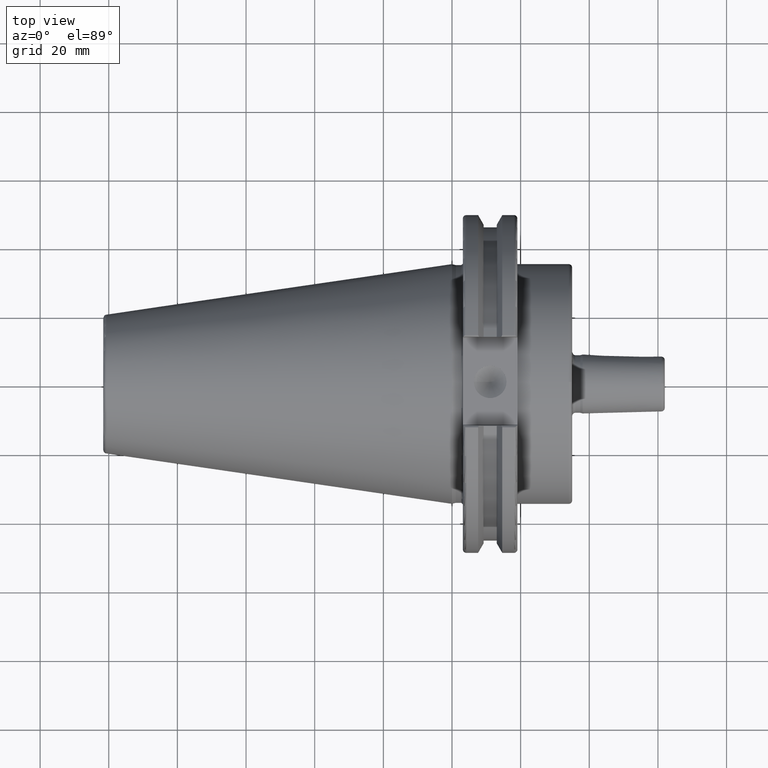
[diagram: clean part render]
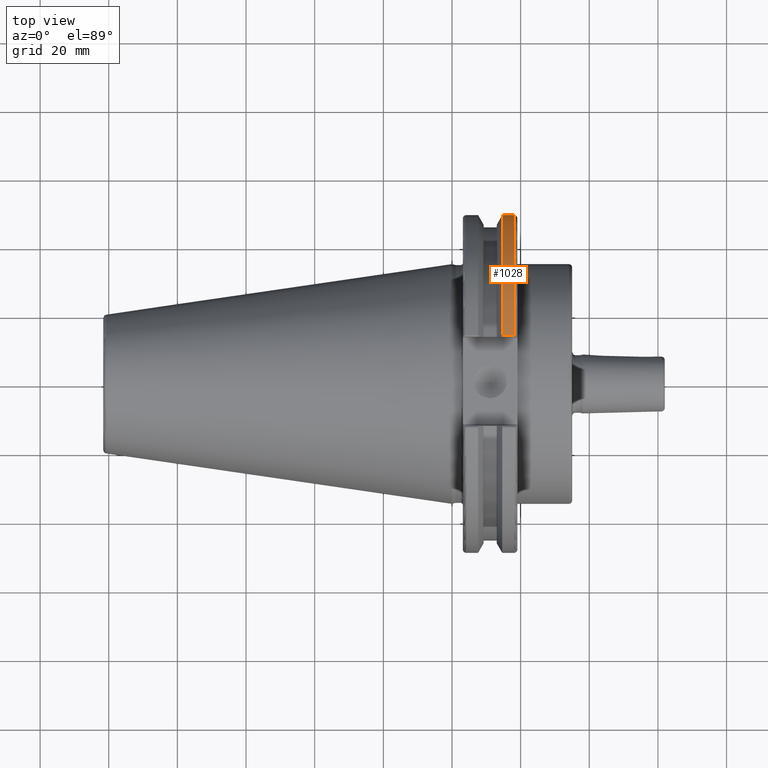
[diagram: same view with one face highlighted and labeled with its STEP entity id]
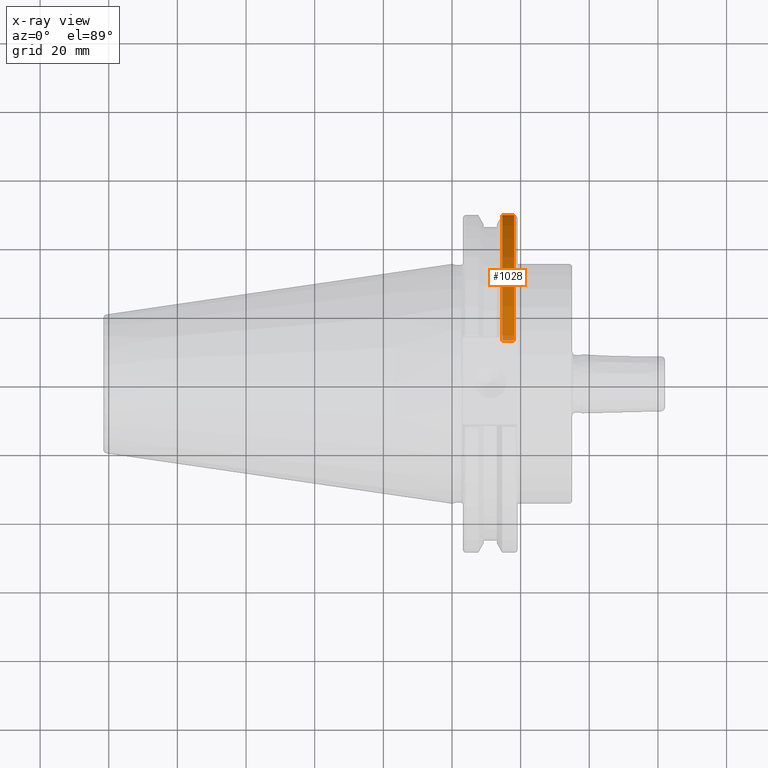
[diagram: x-ray of the same camera — body ghosted, the highlighted face saturated]
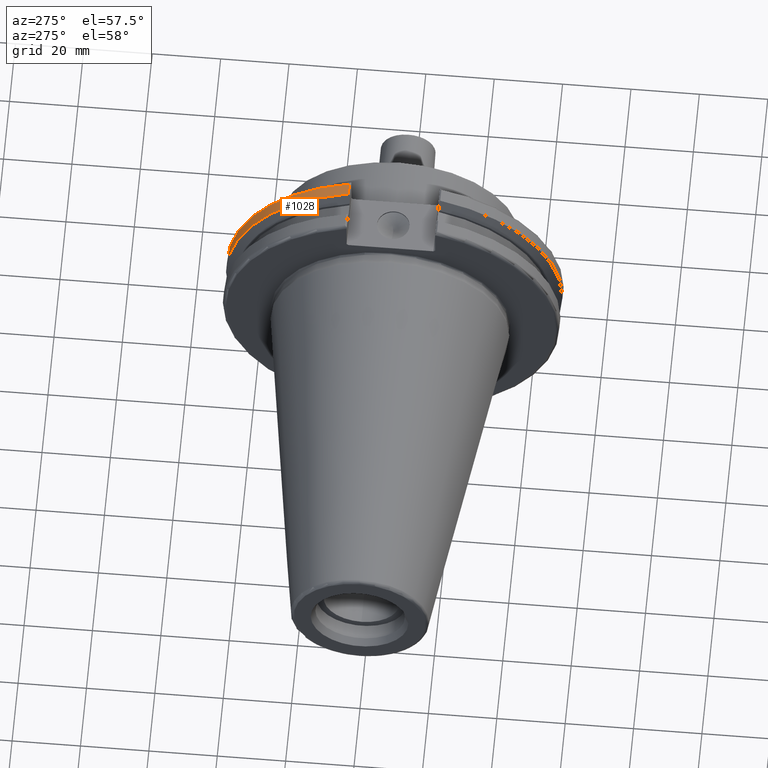
[diagram: same view with one face highlighted and labeled with its STEP entity id]
A machine part, top view. The second image highlights one B-rep face of the part: STEP entity #1028.
The next image is the same camera in x-ray: the body ghosted, the highlighted face saturated — about 4% of this face is hidden behind the body in this view.
A second angle (auxiliary view) of the same face is appended — the face is thin or edge-on in the first view.
In plain terms, the highlighted cylindrical surface (partial cylindrical patch) has radius 49.2125 mm, axis along (1, 0, 0).
Its self-contained STEP definition (entity closure, byte-faithful):
#140=FACE_OUTER_BOUND('',#204,.T.);
#204=EDGE_LOOP('',(#887,#888,#889,#890));
#245=LINE('',#1610,#314);
#290=LINE('',#1870,#359);
#314=VECTOR('',#1288,10.);
#359=VECTOR('',#1409,10.);
#390=CIRCLE('',#1112,49.2125);
#404=CIRCLE('',#1151,49.2125);
#452=VERTEX_POINT('',#1584);
#453=VERTEX_POINT('',#1593);
#455=VERTEX_POINT('',#1606);
#512=VERTEX_POINT('',#1868);
#563=EDGE_CURVE('',#452,#453,#390,.T.);
#567=EDGE_CURVE('',#455,#452,#245,.T.);
#649=EDGE_CURVE('',#455,#512,#404,.T.);
#650=EDGE_CURVE('',#453,#512,#290,.T.);
#887=ORIENTED_EDGE('',*,*,#563,.F.);
#888=ORIENTED_EDGE('',*,*,#567,.F.);
#889=ORIENTED_EDGE('',*,*,#649,.T.);
#890=ORIENTED_EDGE('',*,*,#650,.F.);
#984=CYLINDRICAL_SURFACE('',#1150,49.2125);
#1028=ADVANCED_FACE('',(#140),#984,.T.);
#1112=AXIS2_PLACEMENT_3D('',#1594,#1283,#1284);
#1150=AXIS2_PLACEMENT_3D('',#1867,#1405,#1406);
#1151=AXIS2_PLACEMENT_3D('',#1869,#1407,#1408);
#1283=DIRECTION('center_axis',(1.,0.,0.));
#1284=DIRECTION('ref_axis',(0.,1.,-6.12323399573677E-17));
#1288=DIRECTION('',(1.,0.,0.));
#1405=DIRECTION('center_axis',(1.,0.,0.));
#1406=DIRECTION('ref_axis',(0.,1.,0.));
#1407=DIRECTION('center_axis',(1.,0.,0.));
#1408=DIRECTION('ref_axis',(0.,0.,-1.));
#1409=DIRECTION('',(-1.,0.,0.));
#1584=CARTESIAN_POINT('',(18.05,13.4317035994433,-47.3440544806494));
#1593=CARTESIAN_POINT('',(18.05,13.4317035994433,47.3440544806494));
#1594=CARTESIAN_POINT('Origin',(18.05,0.,0.));
#1606=CARTESIAN_POINT('',(14.6534090340487,13.4317035994433,-47.3440544806494));
#1610=CARTESIAN_POINT('',(16.8517045170244,13.4317035994433,-47.3440544806494));
#1867=CARTESIAN_POINT('Origin',(16.8517045170244,0.,0.));
#1868=CARTESIAN_POINT('',(14.6534090340487,13.4317035994433,47.3440544806494));
#1869=CARTESIAN_POINT('Origin',(14.6534090340487,0.,0.));
#1870=CARTESIAN_POINT('',(16.8517045170244,13.4317035994433,47.3440544806494));